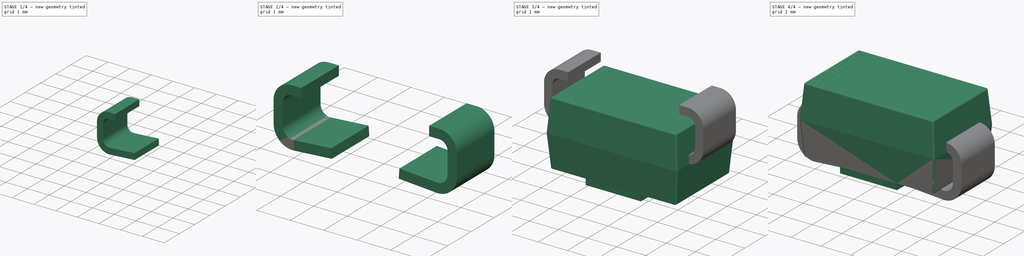
[diagram: build sequence overview — one tinted view per stage of 4, left to right]
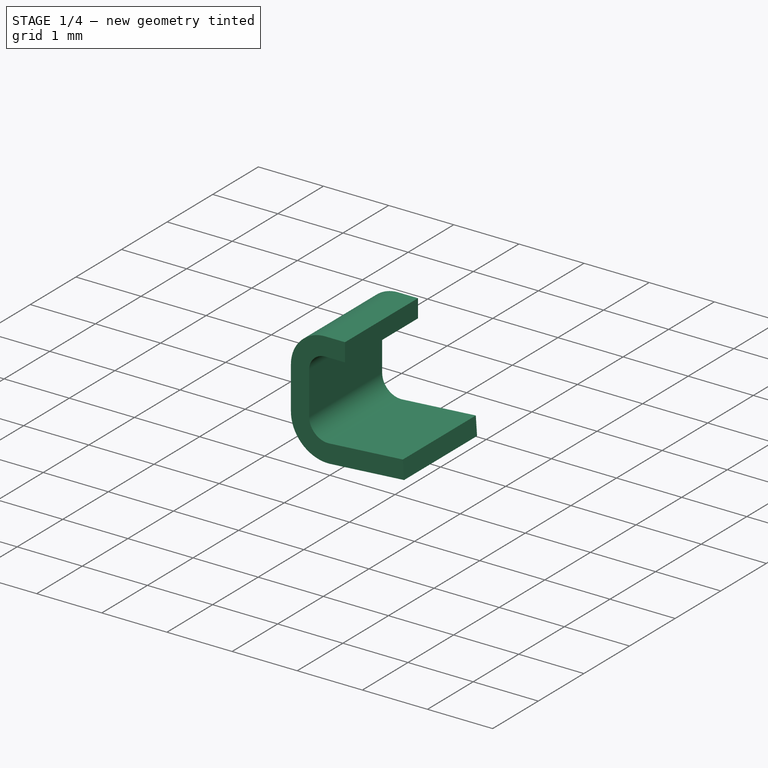
[diagram: stage 1 of 4 — iso view after this stage's code; geometry added in this stage tinted green]
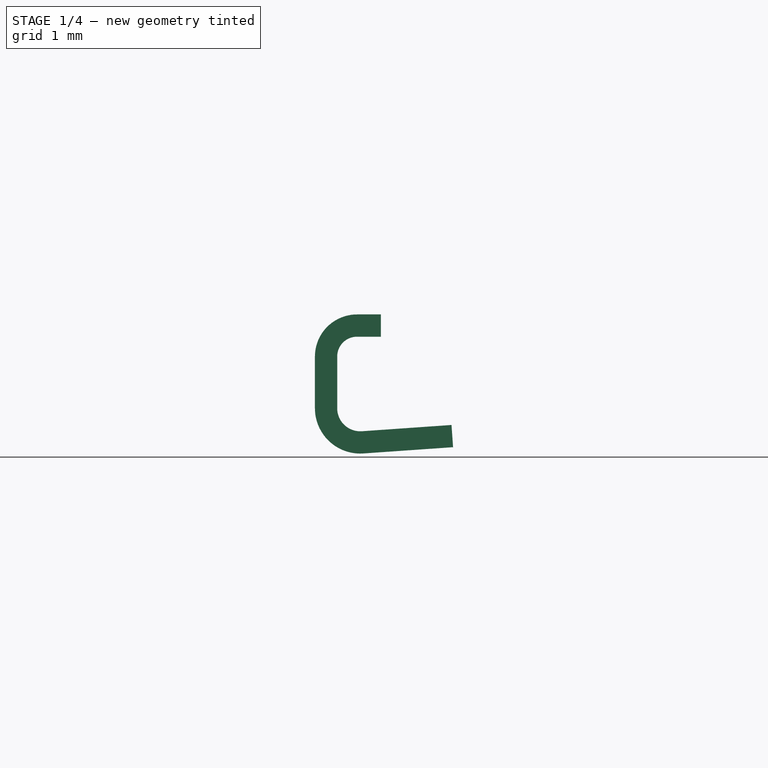
[diagram: stage 1 of 4 — front view after this stage's code; geometry added in this stage tinted green]
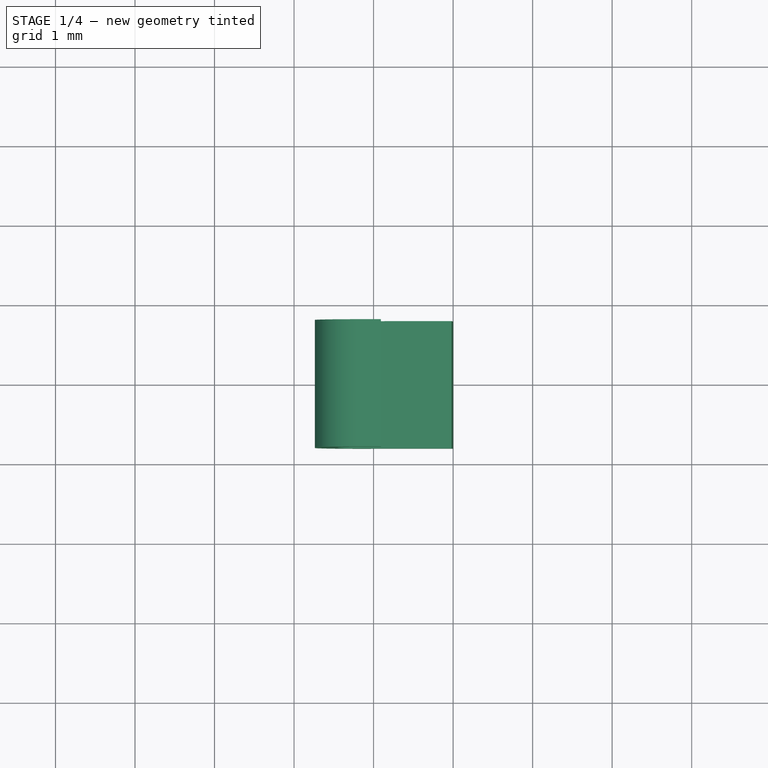
[diagram: stage 1 of 4 — top view after this stage's code; geometry added in this stage tinted green]
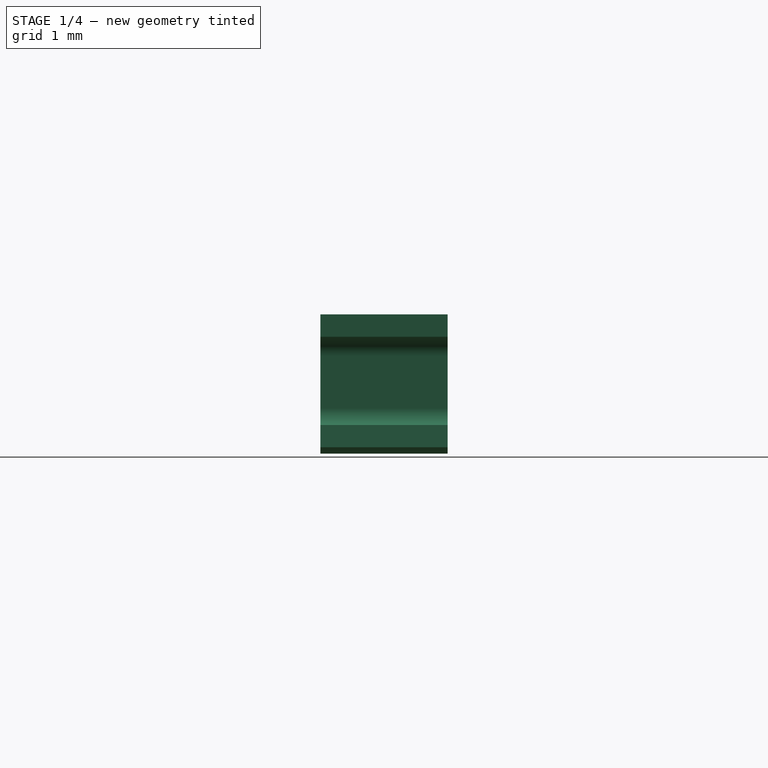
[diagram: stage 1 of 4 — right view after this stage's code; geometry added in this stage tinted green]
FCSTD DOCUMENT  (FreeCAD 0.16R6703 (Git))
Label: DO-214AC
License: All rights reserved
LicenseURL: http://en.wikipedia.org/wiki/All_rights_reserved
objects: Sketcher::SketchObject×6, PartDesign::Pad×2, App::DocumentObjectGroup×2, Part::FeaturePython×2, Part::Feature×1, Part::Loft×1, Part::Fillet×1, PartDesign::Pocket×1, Part::Mirroring×1, Part::MultiFuse×1
note: 19 computed .brp shape members not serialized (recipe doc carries the construction recipe); baked Part::Feature solids carry a one-line shape summary decoded from their .brp

FEATURE [Sketcher::SketchObject] Sketch005  label="pin-src"
  Placement = pos=(0,0,0) rot=(-1,0,0;4.71239rad)
  sketch-geometry (16):
    g0: LineSegment StartX=1.90795 StartY=0 StartZ=0 EndX=1.90795 EndY=0.28 EndZ=0
    g1: LineSegment StartX=1.02 StartY=-1.11 StartZ=0 EndX=2.14725 EndY=-1.18882 EndZ=0
    g2: LineSegment StartX=2.45748 StartY=-0.249531 StartZ=0 EndX=2.45748 EndY=-0.899531 EndZ=0
    g3: ArcOfCircle CenterX=2.16748 CenterY=-0.899531 CenterZ=0 NormalX=0 NormalY=0 NormalZ=1 Radius=0.29 StartAngle=4.64258 EndAngle=6.28319
    g4: LineSegment [constr] StartX=2.14725 StartY=-1.18882 StartZ=0 EndX=2.16748 EndY=-0.899531 EndZ=0
    g5: LineSegment [constr] StartX=2.16748 StartY=-0.899531 StartZ=0 EndX=2.45748 EndY=-0.899531 EndZ=0
    g6: LineSegment StartX=1.02 StartY=-1.11 StartZ=0 EndX=1.00047 EndY=-1.38932 EndZ=0
    g7: LineSegment StartX=1.00047 StartY=-1.38932 StartZ=0 EndX=2.12772 EndY=-1.46814 EndZ=0
    g8: ArcOfCircle CenterX=2.16748 CenterY=-0.899531 CenterZ=0 NormalX=0 NormalY=0 NormalZ=1 Radius=0.57 StartAngle=4.64258 EndAngle=6.28319
    g9: LineSegment StartX=2.73748 StartY=-0.899531 StartZ=0 EndX=2.73748 EndY=-0.249531 EndZ=0
    g10: LineSegment [constr] StartX=2.45748 StartY=-0.249531 StartZ=0 EndX=2.73748 EndY=-0.249531 EndZ=0
    g11: LineSegment [constr] StartX=2.20795 StartY=0 StartZ=0 EndX=2.20795 EndY=-0.249531 EndZ=0
    g12: ArcOfCircle CenterX=2.20795 CenterY=-0.249531 CenterZ=0 NormalX=0 NormalY=0 NormalZ=1 Radius=0.249531 StartAngle=0 EndAngle=1.5708
    g13: ArcOfCircle CenterX=2.20795 CenterY=-0.249531 CenterZ=0 NormalX=0 NormalY=0 NormalZ=1 Radius=0.529531 StartAngle=0 EndAngle=1.5708
    g14: LineSegment StartX=2.20795 StartY=0.28 StartZ=0 EndX=1.90795 EndY=0.28 EndZ=0
    g15: LineSegment StartX=1.90795 StartY=0 StartZ=0 EndX=2.20795 EndY=0 EndZ=0
  constraints (46):
    c: PointOnObject(g0,g-1)
    c: Vertical(g0)
    c: Angle(g-1,g1) = 3.07178
    c: DistanceX(g-1,g1) = 1.02
    c: DistanceY(g1,g-1) = 1.11
    c: Vertical(g2)
    c: Coincident(g3,g1)
    c: Coincident(g3,g2)
    c: Coincident(g4,g1)
    c: Coincident(g5,g3)
    c: Coincident(g5,g2)
    c: Perpendicular(g2,g5)
    c: Coincident(g3,g4)
    c: Perpendicular(g1,g4)
    c: Radius(g3) = 0.29
    c: Distance(g1) = 1.13
    c: Coincident(g6,g1)
    c: Perpendicular(g1,g6)
    c: Coincident(g7,g6)
    c: Parallel(g7,g1)
    c: Distance(g6) = 0.28
    c: PointOnObject(g7,g4)
    c: Coincident(g8,g3)
    c: Coincident(g8,g7)
    c: PointOnObject(g8,g5)
    c: Coincident(g9,g8)
    c: Vertical(g9)
    c: Coincident(g10,g2)
    c: Coincident(g10,g9)
    c: Horizontal(g10)
    c: Vertical(g11)
    c: PointOnObject(g11,g-1)
    c: PointOnObject(g11,g10)
    c: DistanceY(g2,g2) = 0.65
    c: Coincident(g12,g11)
    c: Coincident(g12,g2)
    c: Coincident(g12,g11)
    c: Coincident(g13,g11)
    c: Coincident(g13,g9)
    c: PointOnObject(g13,g11)
    c: Coincident(g14,g13)
    c: Coincident(g14,g0)
    c: Horizontal(g14)
    c: Coincident(g15,g0)
    c: Coincident(g15,g11)
    c: DistanceX(g15,g15) = 0.3
FEATURE [PartDesign::Pad] Pad001  label="pin-src-right"
  Length = 1.6
  Length2 = 100
  Midplane = true
  Placement = pos=(0,0,0) rot=(-1,0,0;4.71239rad)
  Sketch = -> Sketch005
  Type = 0
FEATURE [Part::Mirroring] Part__Mirroring  label="pin-src-right (Mirror #1)"
  Base = (0,0,0)
  Normal = (1,0,0)
  Source = -> Pad001
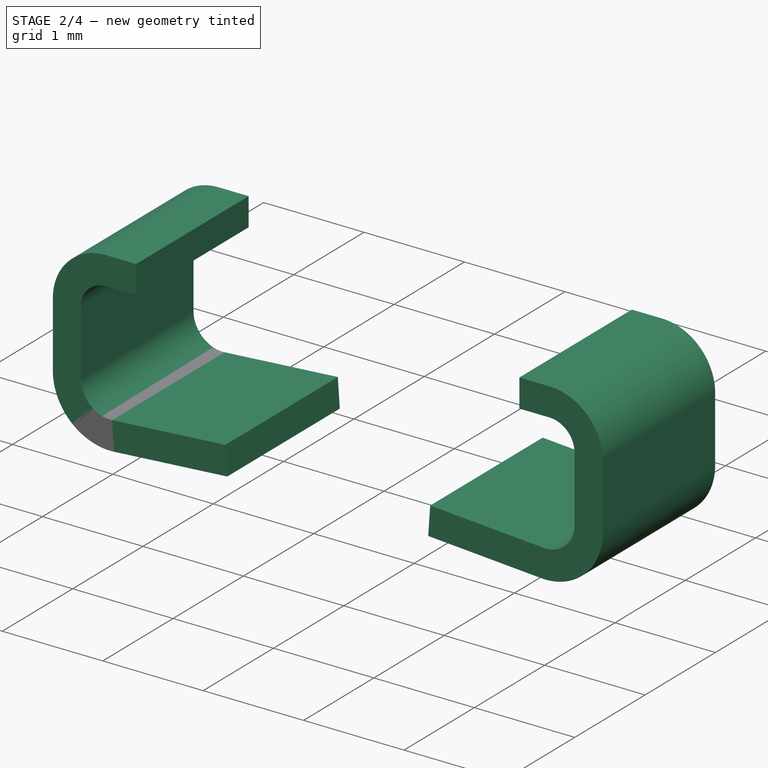
[diagram: stage 2 of 4 — iso view after this stage's code; geometry added in this stage tinted green]
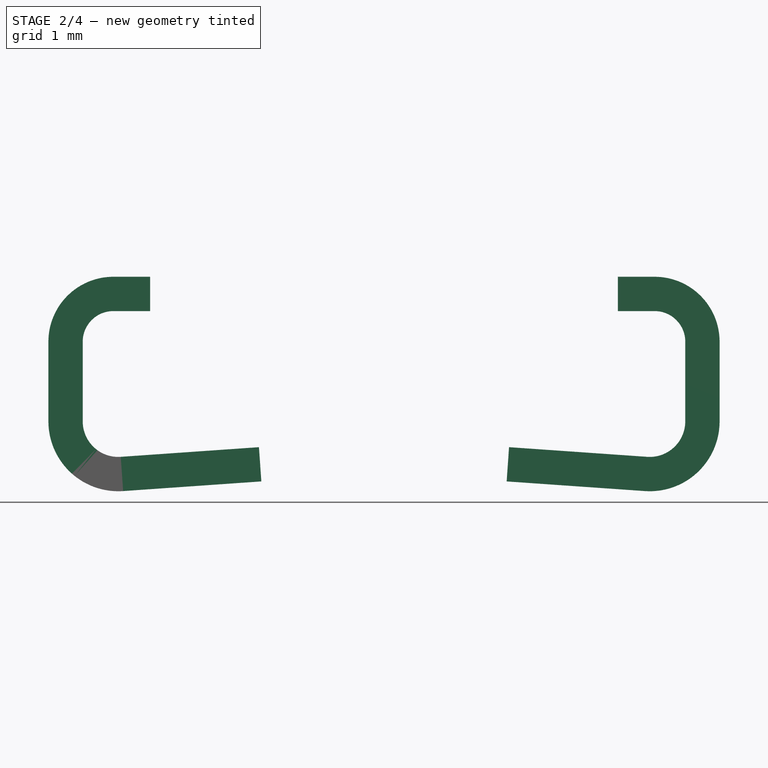
[diagram: stage 2 of 4 — front view after this stage's code; geometry added in this stage tinted green]
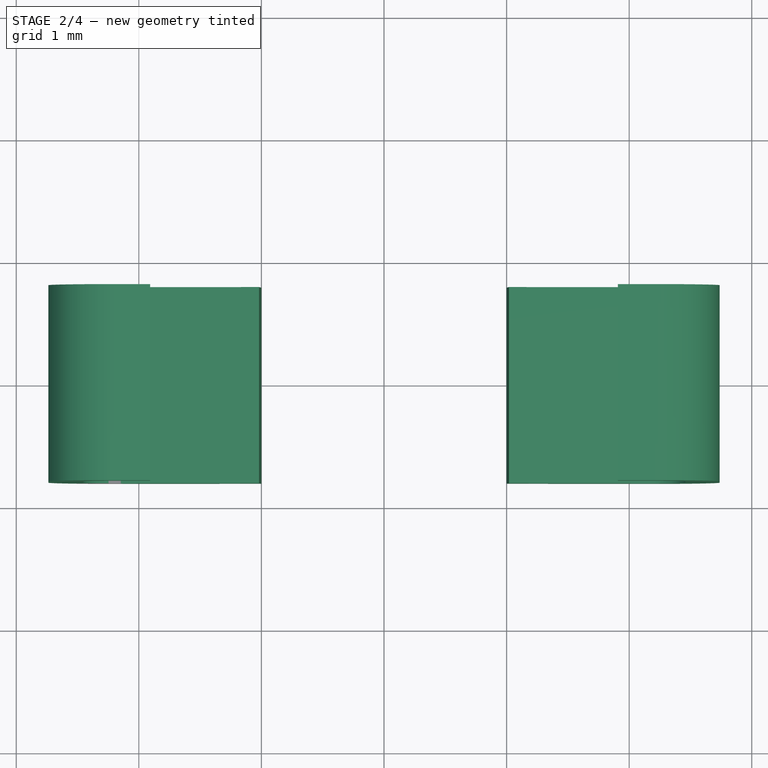
[diagram: stage 2 of 4 — top view after this stage's code; geometry added in this stage tinted green]
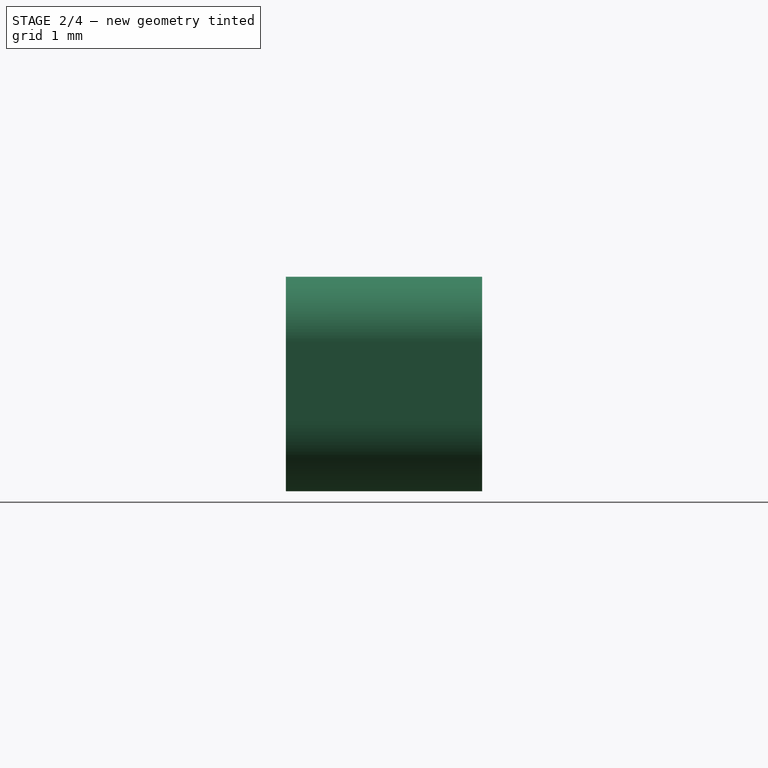
[diagram: stage 2 of 4 — right view after this stage's code; geometry added in this stage tinted green]
FEATURE [Part::MultiFuse] Fusion  label="pins-src"
  Shapes = -> [Pad001,Part__Mirroring]
FEATURE [App::DocumentObjectGroup] Group  label="src"
  Group = -> [Group001,Fusion]
FEATURE [Part::FeaturePython] Clone001  label="pins"  # Draft clone (typed FeaturePython)
  Objects = -> [Fusion]
  Placement = pos=(0,0,1.46814) rot=(0,0,1;0rad)
  Scale = (1,1,1)
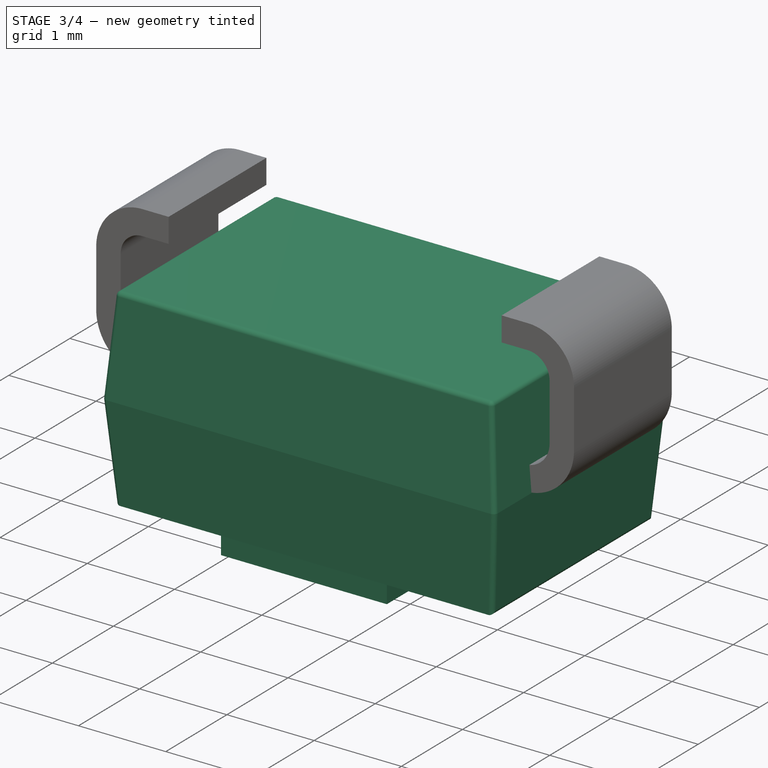
[diagram: stage 3 of 4 — iso view after this stage's code; geometry added in this stage tinted green]
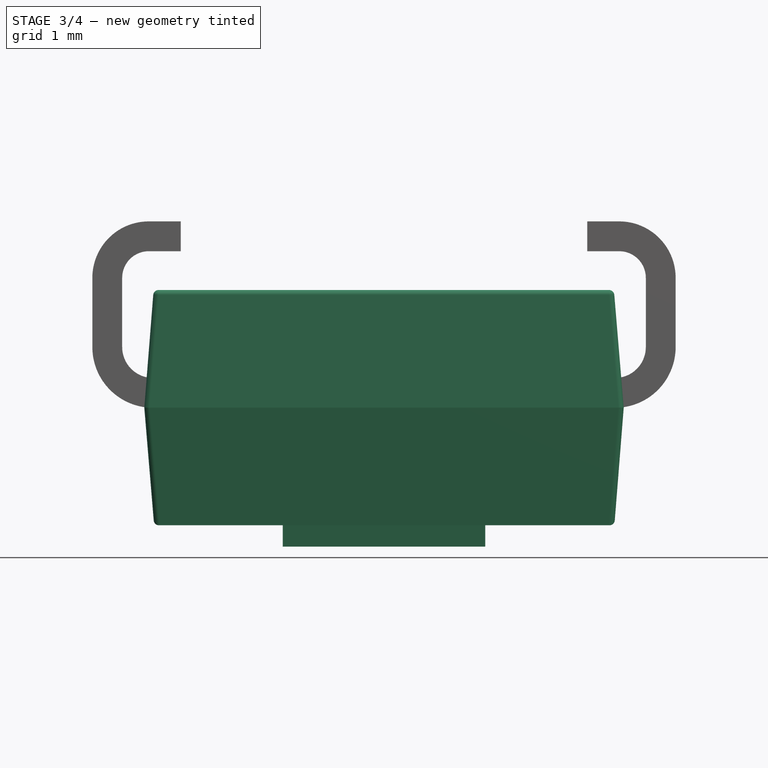
[diagram: stage 3 of 4 — front view after this stage's code; geometry added in this stage tinted green]
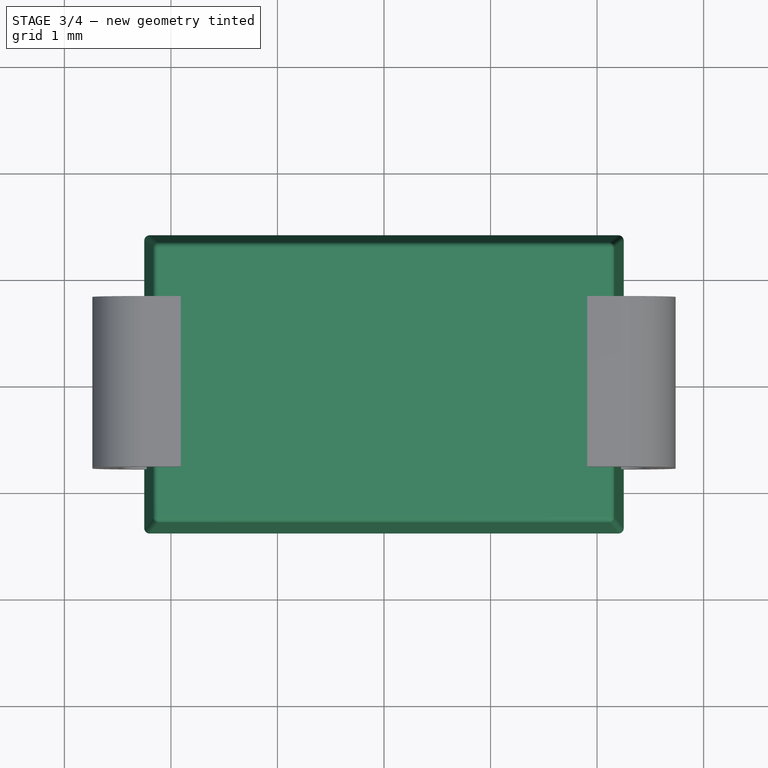
[diagram: stage 3 of 4 — top view after this stage's code; geometry added in this stage tinted green]
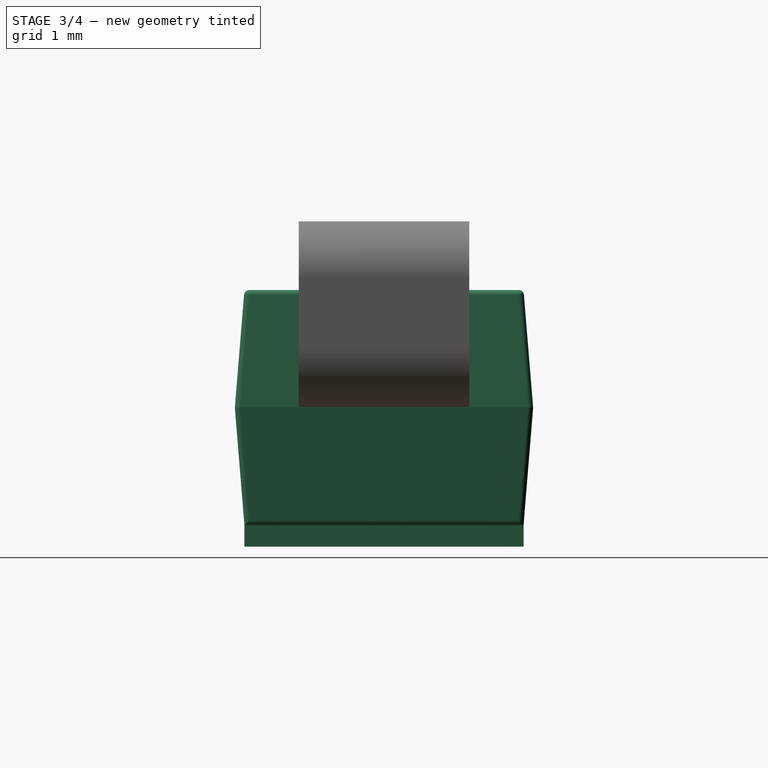
[diagram: stage 3 of 4 — right view after this stage's code; geometry added in this stage tinted green]
FEATURE [Part::Feature] Part__Feature168  label="User_Library-DIOM5528X26"
  Placement = pos=(-1e-12,3e-12,-1.5) rot=(0,0,1;0rad)
  shape: bbox 5.506 x 2.806 x 2.6 mm, 152 faces (baked)
FEATURE [Sketcher::SketchObject] Sketch  label="bottom-sketch"
  Placement = pos=(0.00224435,-1.88634e-07,-1.10436) rot=(0,0,1;0rad)
  sketch-geometry (4):
    g0: LineSegment StartX=-2.16 StartY=1.31 StartZ=0 EndX=2.16 EndY=1.31 EndZ=0
    g1: LineSegment StartX=2.16 StartY=1.31 StartZ=0 EndX=2.16 EndY=-1.31 EndZ=0
    g2: LineSegment StartX=2.16 StartY=-1.31 StartZ=0 EndX=-2.16 EndY=-1.31 EndZ=0
    g3: LineSegment StartX=-2.16 StartY=-1.31 StartZ=0 EndX=-2.16 EndY=1.31 EndZ=0
  constraints (11):
    c: Coincident(g0,g1)
    c: Coincident(g1,g2)
    c: Coincident(g2,g3)
    c: Coincident(g3,g0)
    c: Horizontal(g0)
    c: Horizontal(g2)
    c: Vertical(g1)
    c: Vertical(g3)
    c: Symmetric(g0,g1,g-1)
    c: DistanceX(g0,g0) = 4.32
    c: DistanceY(g3,g3) = 2.62
FEATURE [Sketcher::SketchObject] Sketch001  label="top-sketch"
  Placement = pos=(-0.00224435,1.8864e-07,1.10436) rot=(0,0,1;0rad)
  sketch-geometry (4):
    g0: LineSegment StartX=-2.16 StartY=1.31 StartZ=0 EndX=2.16 EndY=1.31 EndZ=0
    g1: LineSegment StartX=2.16 StartY=1.31 StartZ=0 EndX=2.16 EndY=-1.31 EndZ=0
    g2: LineSegment StartX=2.16 StartY=-1.31 StartZ=0 EndX=-2.16 EndY=-1.31 EndZ=0
    g3: LineSegment StartX=-2.16 StartY=-1.31 StartZ=0 EndX=-2.16 EndY=1.31 EndZ=0
  constraints (11):
    c: Coincident(g0,g1)
    c: Coincident(g1,g2)
    c: Coincident(g2,g3)
    c: Coincident(g3,g0)
    c: Horizontal(g0)
    c: Horizontal(g2)
    c: Vertical(g1)
    c: Vertical(g3)
    c: Symmetric(g0,g1,g-1)
    c: DistanceX(g0,g0) = 4.32
    c: DistanceY(g3,g3) = 2.62
FEATURE [Sketcher::SketchObject] Sketch002  label="middle-sketch"
  sketch-geometry (4):
    g0: LineSegment StartX=-2.25 StartY=1.4 StartZ=0 EndX=2.25 EndY=1.4 EndZ=0
    g1: LineSegment StartX=2.25 StartY=1.4 StartZ=0 EndX=2.25 EndY=-1.4 EndZ=0
    g2: LineSegment StartX=2.25 StartY=-1.4 StartZ=0 EndX=-2.25 EndY=-1.4 EndZ=0
    g3: LineSegment StartX=-2.25 StartY=-1.4 StartZ=0 EndX=-2.25 EndY=1.4 EndZ=0
  constraints (11):
    c: Coincident(g0,g1)
    c: Coincident(g1,g2)
    c: Coincident(g2,g3)
    c: Coincident(g3,g0)
    c: Horizontal(g0)
    c: Horizontal(g2)
    c: Vertical(g1)
    c: Vertical(g3)
    c: Symmetric(g0,g1,g-1)
    c: DistanceX(g0,g0) = 4.5
    c: DistanceY(g1,g1) = 2.8
FEATURE [Part::Loft] Loft  label="body-src-1"
  Closed = false
  Ruled = true
  Sections = -> [Sketch,Sketch002,Sketch001]
  Solid = true
FEATURE [Sketcher::SketchObject] Sketch003
  ExternalGeometry = -> [Loft]
  Placement = pos=(0,0,-1.10436) rot=(1,0,0;3.14159rad)
  Support = -> Loft [Face9]
  sketch-geometry (4):
    g0: LineSegment StartX=-0.95 StartY=1.31 StartZ=0 EndX=0.95 EndY=1.31 EndZ=0
    g1: LineSegment StartX=0.95 StartY=1.31 StartZ=0 EndX=0.95 EndY=-1.31 EndZ=0
    g2: LineSegment StartX=0.95 StartY=-1.31 StartZ=0 EndX=-0.95 EndY=-1.31 EndZ=0
    g3: LineSegment StartX=-0.95 StartY=-1.31 StartZ=0 EndX=-0.95 EndY=1.31 EndZ=0
  constraints (11):
    c: Coincident(g0,g1)
    c: Coincident(g1,g2)
    c: Coincident(g2,g3)
    c: Coincident(g3,g0)
    c: Horizontal(g0)
    c: Horizontal(g2)
    c: Vertical(g1)
    c: Vertical(g3)
    c: Symmetric(g0,g1,g-1)
    c: PointOnObject(g0,g-3)
    c: DistanceX(g2,g2) = 1.9
FEATURE [PartDesign::Pad] Pad
  Length = 0.2
  Length2 = 100
  Sketch = -> Sketch003
  Type = 0
FEATURE [Part::Fillet] Fillet  label="body-fillet"
  Base = -> Pad
  Edges = 14 edges r=0.05: [Edge1,Edge2,Edge4,Edge11,Edge12,Edge13,Edge14,Edge16,Edge25,Edge26,Edge27,Edge30,Edge31,Edge32]
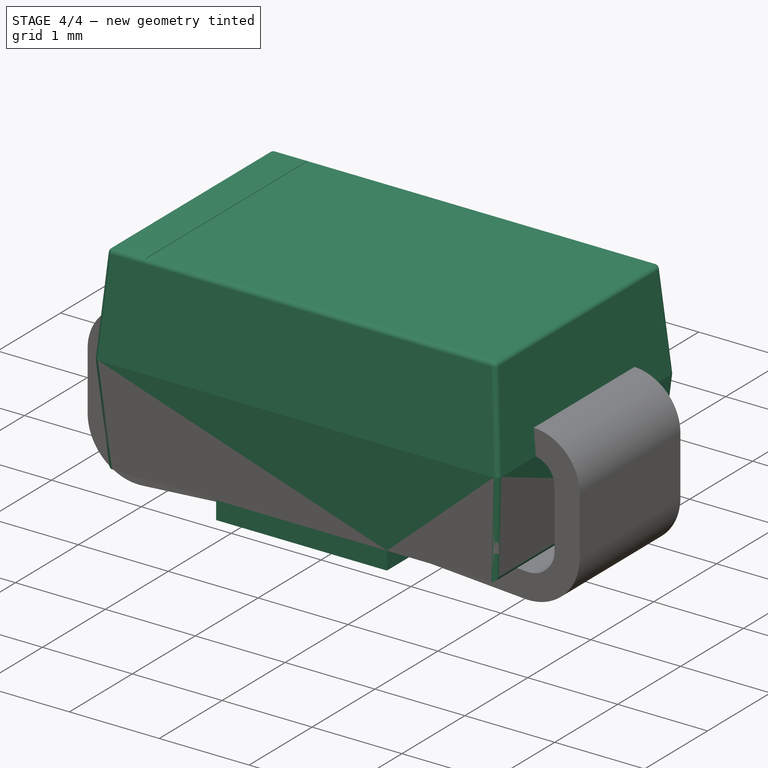
[diagram: stage 4 of 4 — iso view after this stage's code; geometry added in this stage tinted green]
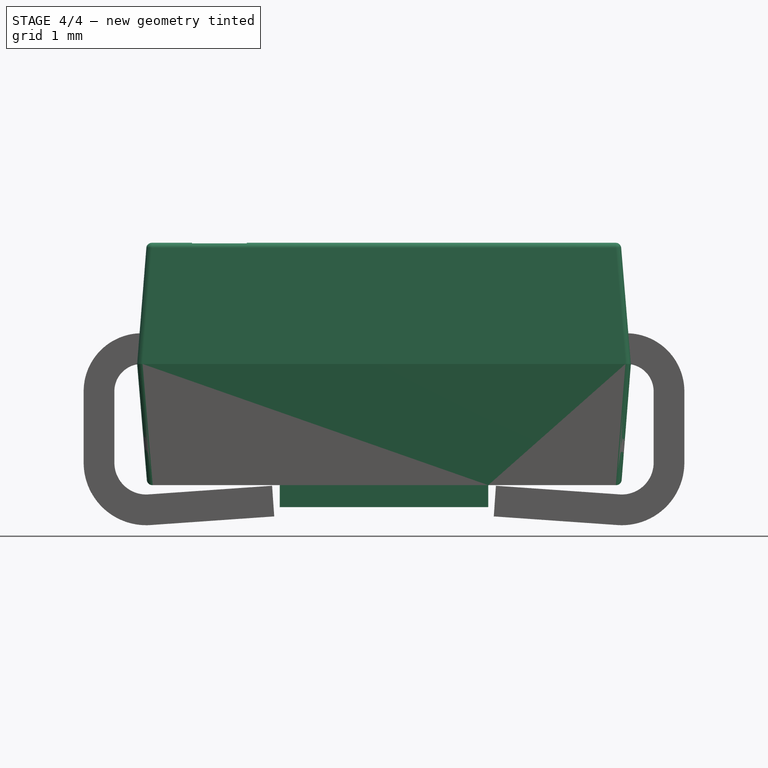
[diagram: stage 4 of 4 — front view after this stage's code; geometry added in this stage tinted green]
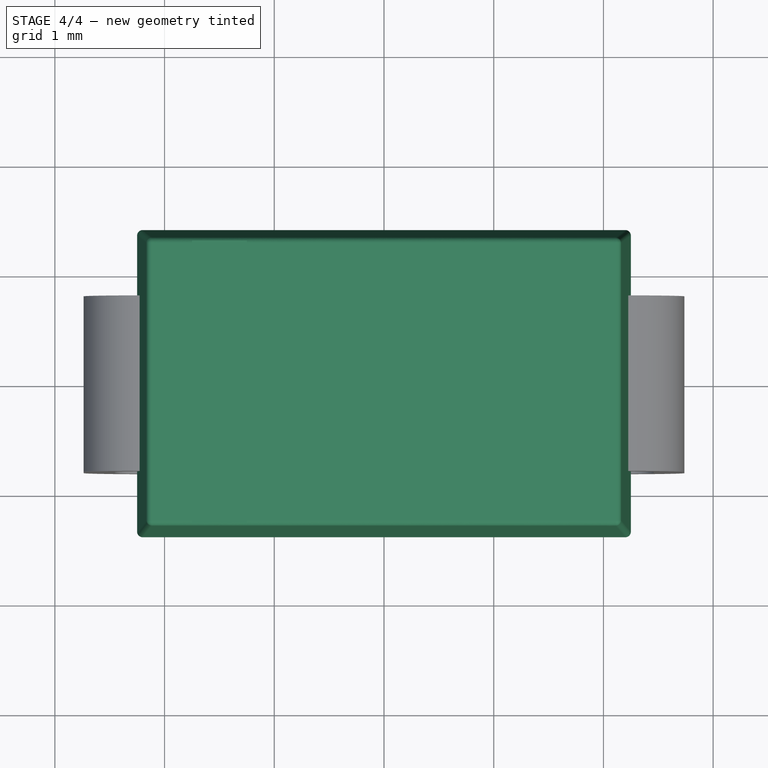
[diagram: stage 4 of 4 — top view after this stage's code; geometry added in this stage tinted green]
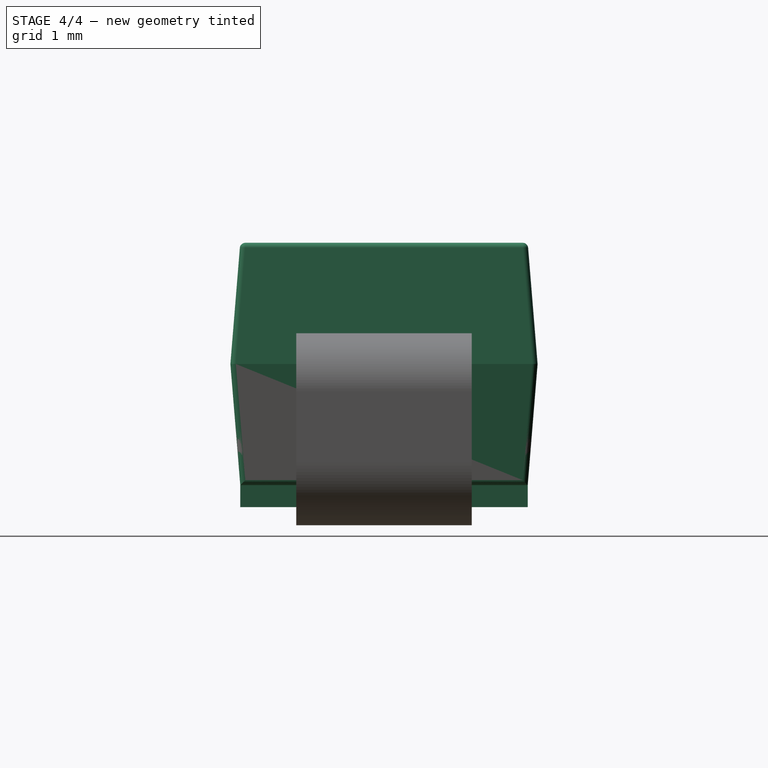
[diagram: stage 4 of 4 — right view after this stage's code; geometry added in this stage tinted green]
FEATURE [Sketcher::SketchObject] Sketch004
  Placement = pos=(0,0,1.10436) rot=(0,0,1;0rad)
  Support = -> Fillet [Face18]
  sketch-geometry (4):
    g0: LineSegment StartX=-1.75 StartY=1.31 StartZ=0 EndX=-1.25 EndY=1.31 EndZ=0
    g1: LineSegment StartX=-1.25 StartY=1.31 StartZ=0 EndX=-1.25 EndY=-1.31 EndZ=0
    g2: LineSegment StartX=-1.25 StartY=-1.31 StartZ=0 EndX=-1.75 EndY=-1.31 EndZ=0
    g3: LineSegment StartX=-1.75 StartY=-1.31 StartZ=0 EndX=-1.75 EndY=1.31 EndZ=0
  constraints (12):
    c: Coincident(g0,g1)
    c: Coincident(g1,g2)
    c: Coincident(g2,g3)
    c: Coincident(g3,g0)
    c: Horizontal(g0)
    c: Horizontal(g2)
    c: Vertical(g1)
    c: Vertical(g3)
    c: DistanceY(g3,g3) = 2.62
    c: DistanceX(g0,g0) = 0.5
    c: Symmetric(g1,g0,g-1)
    c: DistanceX(g1,g-1) = 1.25
FEATURE [PartDesign::Pocket] Pocket  label="body-mark"
  Length = 0.005
  Sketch = -> Sketch004
  Type = 0
FEATURE [App::DocumentObjectGroup] Group001  label="body-src"
  Group = -> [Loft,Pad,Fillet,Pocket]
FEATURE [Part::FeaturePython] Clone  label="body"  # Draft clone (typed FeaturePython)
  Objects = -> [Pocket]
  Placement = pos=(0,0,1.46814) rot=(0,0,1;0rad)
  Scale = (1,1,1)
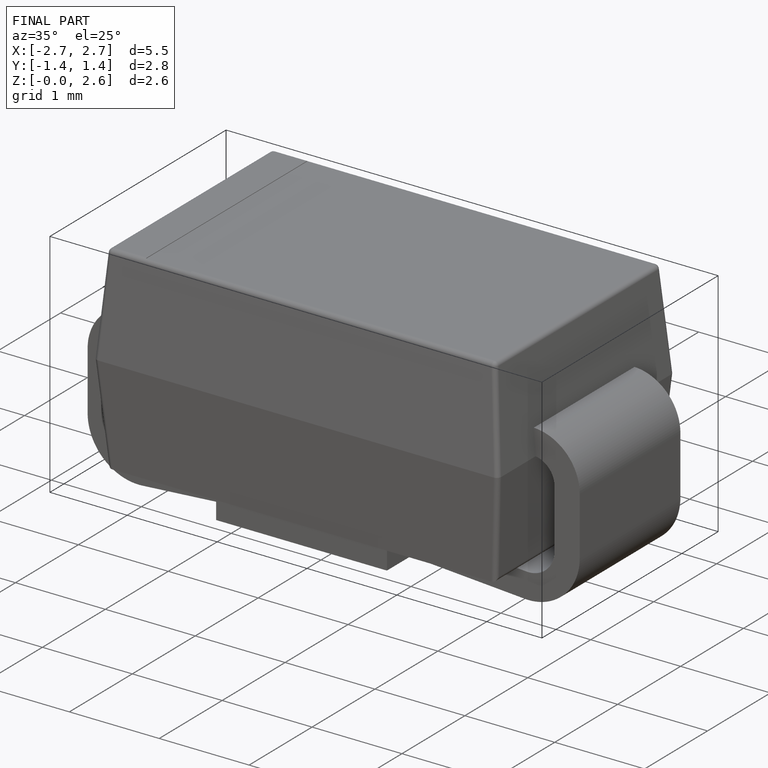
[diagram: finished part — iso view with bounding-box wireframe]
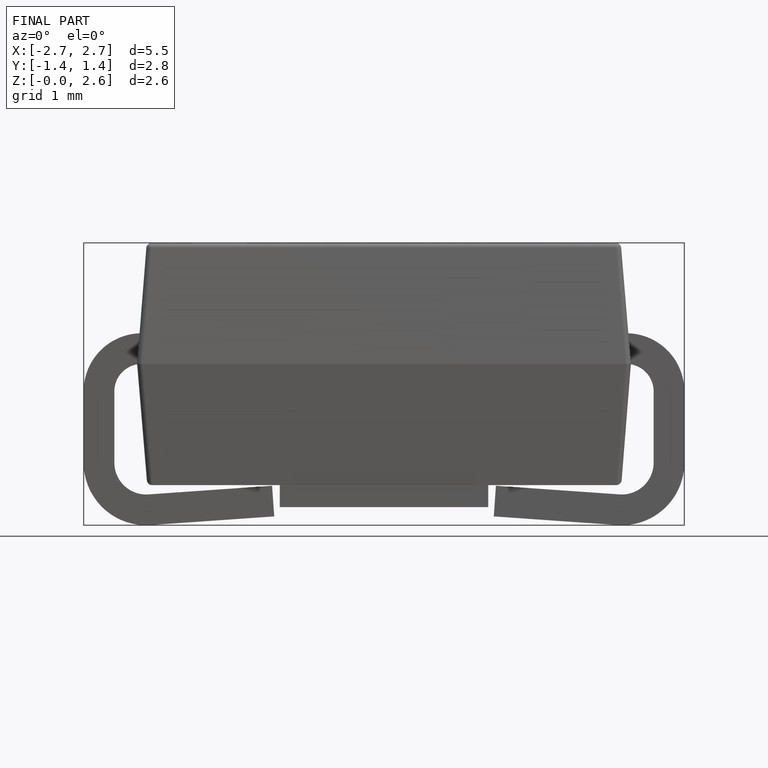
[diagram: finished part — front view with bounding-box wireframe]
